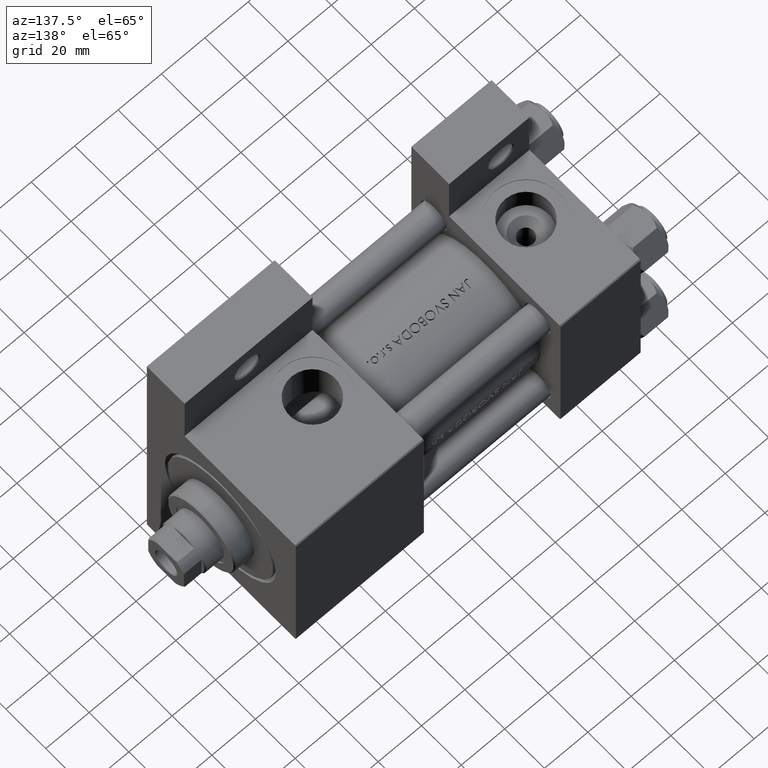
[diagram: clean part render]
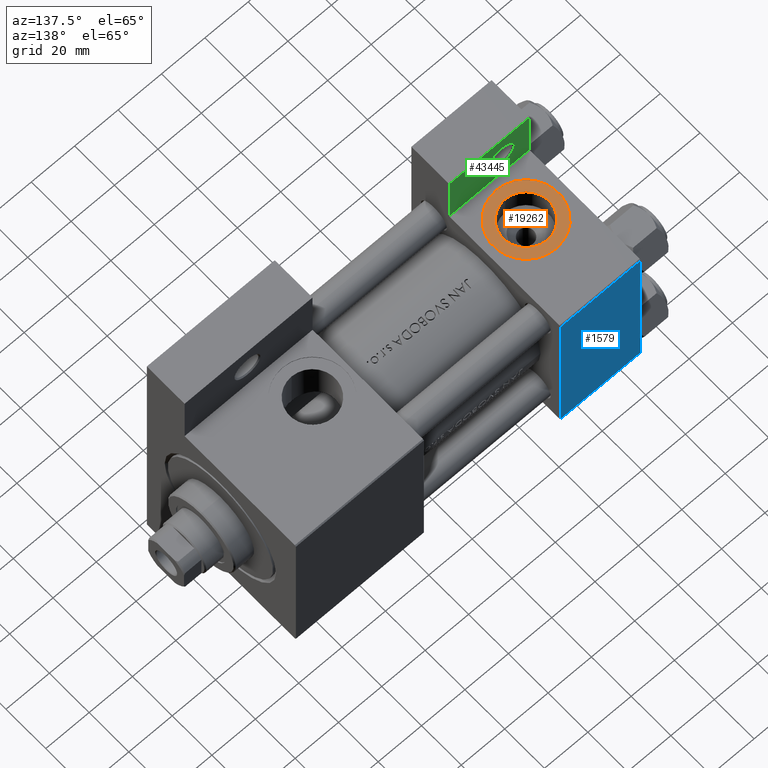
[diagram: same view with three faces highlighted in distinct colors, each labeled with its STEP entity id]
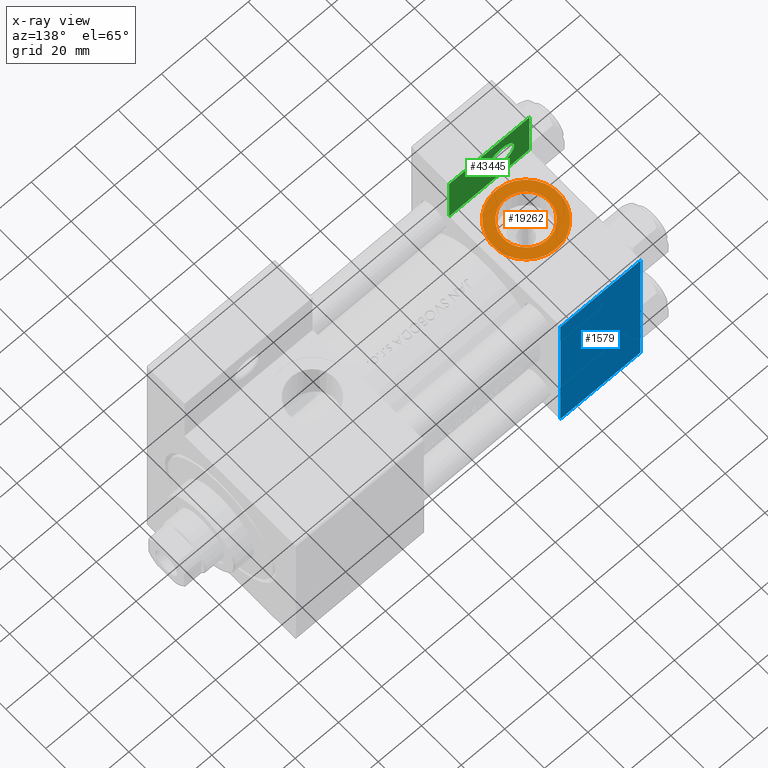
[diagram: x-ray of the same camera — body ghosted, the three highlighted faces saturated]
A machine part, auxiliary view with three faces highlighted in distinct colors.
The next image is the same camera in x-ray (body ghosted, the three faces saturated) — at least one of them is partly hidden behind the body in this view.
Their STEP definitions:

[orange] entity #19262 — the highlighted planar face has unit normal (0, -0, 1).
#494 = EDGE_CURVE ( 'NONE', #2974, #1648, #16125, .T. ) ;
#1229 = DIRECTION ( 'NONE',  ( 0.000000000000000000, 0.000000000000000000, -1.000000000000000000 ) ) ;
#1392 = EDGE_LOOP ( 'NONE', ( #6895, #7362 ) ) ;
#1648 = VERTEX_POINT ( 'NONE', #37598 ) ;
#2750 = PLANE ( 'NONE',  #28692 ) ;
#2974 = VERTEX_POINT ( 'NONE', #20824 ) ;
#3147 = DIRECTION ( 'NONE',  ( 0.000000000000000000, 0.000000000000000000, -1.000000000000000000 ) ) ;
#3643 = DIRECTION ( 'NONE',  ( 0.000000000000000000, -1.000000000000000000, -8.673617379884036705E-17 ) ) ;
#4317 = CARTESIAN_POINT ( 'NONE',  ( 18.50000000000000000, -37.30000000000000426, -3.452099717193846907E-15 ) ) ;
#5110 = DIRECTION ( 'NONE',  ( 0.000000000000000000, 0.000000000000000000, -1.000000000000000000 ) ) ;
#6327 = VERTEX_POINT ( 'NONE', #20836 ) ;
#6895 = ORIENTED_EDGE ( 'NONE', *, *, #494, .F. ) ;
#7362 = ORIENTED_EDGE ( 'NONE', *, *, #44412, .F. ) ;
#8375 = CIRCLE ( 'NONE', #46558, 10.48000000000000043 ) ;
#9779 = AXIS2_PLACEMENT_3D ( 'NONE', #4317, #10804, #18517 ) ;
#9825 = ORIENTED_EDGE ( 'NONE', *, *, #31256, .T. ) ;
#10804 = DIRECTION ( 'NONE',  ( 0.000000000000000000, -1.000000000000000000, -8.673617379884036705E-17 ) ) ;
#11066 = VERTEX_POINT ( 'NONE', #32131 ) ;
#15127 = EDGE_LOOP ( 'NONE', ( #9825, #20919 ) ) ;
#16125 = CIRCLE ( 'NONE', #9779, 10.48000000000000043 ) ;
#17945 = DIRECTION ( 'NONE',  ( 0.000000000000000000, 8.673617379884036705E-17, -1.000000000000000000 ) ) ;
#18517 = DIRECTION ( 'NONE',  ( 0.000000000000000000, 0.000000000000000000, -1.000000000000000000 ) ) ;
#19262 = ADVANCED_FACE ( 'NONE', ( #40376, #25172 ), #2750, .T. ) ;
#20639 = DIRECTION ( 'NONE',  ( 0.000000000000000000, -1.000000000000000000, -8.673617379884036705E-17 ) ) ;
#20824 = CARTESIAN_POINT ( 'NONE',  ( 18.50000000000000000, -37.30000000000000426, -10.48000000000000398 ) ) ;
#20836 = CARTESIAN_POINT ( 'NONE',  ( 18.50000000000000355, -37.30000000000000426, 14.99999999999999822 ) ) ;
#20919 = ORIENTED_EDGE ( 'NONE', *, *, #25835, .T. ) ;
#24971 = CIRCLE ( 'NONE', #35303, 15.00000000000000178 ) ;
#25172 = FACE_OUTER_BOUND ( 'NONE', #15127, .T. ) ;
#25585 = CIRCLE ( 'NONE', #44699, 15.00000000000000178 ) ;
#25835 = EDGE_CURVE ( 'NONE', #6327, #11066, #25585, .T. ) ;
#27289 = DIRECTION ( 'NONE',  ( 0.000000000000000000, -1.000000000000000000, -8.673617379884036705E-17 ) ) ;
#28692 = AXIS2_PLACEMENT_3D ( 'NONE', #40119, #40848, #17945 ) ;
#29549 = CARTESIAN_POINT ( 'NONE',  ( 18.50000000000000000, -37.30000000000000426, -3.452099717193846907E-15 ) ) ;
#31256 = EDGE_CURVE ( 'NONE', #11066, #6327, #24971, .T. ) ;
#32131 = CARTESIAN_POINT ( 'NONE',  ( 18.50000000000000000, -37.30000000000000426, -15.00000000000000533 ) ) ;
#34761 = CARTESIAN_POINT ( 'NONE',  ( 18.50000000000000000, -37.30000000000000426, -3.452099717193846907E-15 ) ) ;
#35303 = AXIS2_PLACEMENT_3D ( 'NONE', #39082, #20639, #1229 ) ;
#37598 = CARTESIAN_POINT ( 'NONE',  ( 18.50000000000000000, -37.30000000000000426, 10.47999999999999687 ) ) ;
#39082 = CARTESIAN_POINT ( 'NONE',  ( 18.50000000000000000, -37.30000000000000426, -3.452099717193846907E-15 ) ) ;
#40119 = CARTESIAN_POINT ( 'NONE',  ( 18.50000000000000000, -37.30000000000000426, -3.452099717193846907E-15 ) ) ;
#40376 = FACE_BOUND ( 'NONE', #1392, .T. ) ;
#40848 = DIRECTION ( 'NONE',  ( 0.000000000000000000, -1.000000000000000000, -8.673617379884036705E-17 ) ) ;
#44412 = EDGE_CURVE ( 'NONE', #1648, #2974, #8375, .T. ) ;
#44699 = AXIS2_PLACEMENT_3D ( 'NONE', #29549, #3643, #3147 ) ;
#46558 = AXIS2_PLACEMENT_3D ( 'NONE', #34761, #27289, #5110 ) ;

[blue] entity #1579 — the highlighted planar face has unit normal (0, -1, -0).
#457 = DIRECTION ( 'NONE',  ( 0.000000000000000000, -1.000000000000000000, -9.251858538542971581E-17 ) ) ;
#849 = CARTESIAN_POINT ( 'NONE',  ( 37.00000000000000000, 37.49999999999999289, 37.50000000000000000 ) ) ;
#1579 = ADVANCED_FACE ( 'NONE', ( #24484 ), #39438, .F. ) ;
#1804 = CARTESIAN_POINT ( 'NONE',  ( 37.00000000000000000, 37.49999999999999289, 37.50000000000000000 ) ) ;
#6877 = VERTEX_POINT ( 'NONE', #30897 ) ;
#7282 = LINE ( 'NONE', #22221, #21924 ) ;
#7498 = EDGE_LOOP ( 'NONE', ( #46935, #8987, #22308, #41996 ) ) ;
#7944 = EDGE_CURVE ( 'NONE', #41668, #43372, #36159, .T. ) ;
#8987 = ORIENTED_EDGE ( 'NONE', *, *, #32853, .T. ) ;
#12480 = LINE ( 'NONE', #20929, #25009 ) ;
#16981 = DIRECTION ( 'NONE',  ( 0.000000000000000000, -1.000000000000000000, -9.251858538542971581E-17 ) ) ;
#18449 = LINE ( 'NONE', #46033, #43177 ) ;
#20748 = DIRECTION ( 'NONE',  ( 0.000000000000000000, 1.000000000000000000, 9.251858538542971581E-17 ) ) ;
#20929 = CARTESIAN_POINT ( 'NONE',  ( 37.00000000000000000, -37.00000000000000711, 37.49999999999999289 ) ) ;
#21924 = VECTOR ( 'NONE', #33658, 1000.000000000000000 ) ;
#22221 = CARTESIAN_POINT ( 'NONE',  ( 0.000000000000000000, 36.99999999999999289, 37.50000000000000000 ) ) ;
#22308 = ORIENTED_EDGE ( 'NONE', *, *, #7944, .F. ) ;
#24484 = FACE_OUTER_BOUND ( 'NONE', #7498, .T. ) ;
#25009 = VECTOR ( 'NONE', #35861, 1000.000000000000000 ) ;
#26427 = CARTESIAN_POINT ( 'NONE',  ( 37.00000000000000000, 36.99999999999999289, 37.50000000000000000 ) ) ;
#28689 = EDGE_CURVE ( 'NONE', #6877, #37568, #18449, .T. ) ;
#30897 = CARTESIAN_POINT ( 'NONE',  ( 0.000000000000000000, 36.99999999999999289, 37.50000000000000000 ) ) ;
#32853 = EDGE_CURVE ( 'NONE', #37568, #43372, #12480, .T. ) ;
#33658 = DIRECTION ( 'NONE',  ( -1.000000000000000000, 0.000000000000000000, 0.000000000000000000 ) ) ;
#35861 = DIRECTION ( 'NONE',  ( 1.000000000000000000, 0.000000000000000000, 0.000000000000000000 ) ) ;
#36159 = LINE ( 'NONE', #1804, #47391 ) ;
#37230 = CARTESIAN_POINT ( 'NONE',  ( 37.00000000000000000, -37.00000000000000711, 37.49999999999999289 ) ) ;
#37568 = VERTEX_POINT ( 'NONE', #41383 ) ;
#39438 = PLANE ( 'NONE',  #43230 ) ;
#39689 = DIRECTION ( 'NONE',  ( 0.000000000000000000, 9.251858538542971581E-17, -1.000000000000000000 ) ) ;
#41383 = CARTESIAN_POINT ( 'NONE',  ( 0.000000000000000000, -37.00000000000000711, 37.49999999999999289 ) ) ;
#41668 = VERTEX_POINT ( 'NONE', #26427 ) ;
#41996 = ORIENTED_EDGE ( 'NONE', *, *, #45434, .T. ) ;
#43177 = VECTOR ( 'NONE', #457, 1000.000000000000000 ) ;
#43230 = AXIS2_PLACEMENT_3D ( 'NONE', #849, #39689, #20748 ) ;
#43372 = VERTEX_POINT ( 'NONE', #37230 ) ;
#45434 = EDGE_CURVE ( 'NONE', #41668, #6877, #7282, .T. ) ;
#46033 = CARTESIAN_POINT ( 'NONE',  ( 0.000000000000000000, 37.49999999999999289, 37.50000000000000000 ) ) ;
#46935 = ORIENTED_EDGE ( 'NONE', *, *, #28689, .T. ) ;
#47391 = VECTOR ( 'NONE', #16981, 1000.000000000000000 ) ;

[green] entity #43445 — the highlighted planar face has unit normal (0, -1, 0).
#128 = DIRECTION ( 'NONE',  ( 0.000000000000000000, 0.000000000000000000, -1.000000000000000000 ) ) ;
#1047 = DIRECTION ( 'NONE',  ( -1.000000000000000000, 0.000000000000000000, 0.000000000000000000 ) ) ;
#4092 = VECTOR ( 'NONE', #26718, 1000.000000000000000 ) ;
#4344 = FACE_BOUND ( 'NONE', #20749, .T. ) ;
#4782 = CARTESIAN_POINT ( 'NONE',  ( 12.99999999999999822, -51.00000000000001421, -18.50000000000000000 ) ) ;
#5146 = CARTESIAN_POINT ( 'NONE',  ( 37.00000000000000000, -63.49999999999998579, -18.50000000000000355 ) ) ;
#7550 = DIRECTION ( 'NONE',  ( 0.000000000000000000, 0.000000000000000000, -1.000000000000000000 ) ) ;
#7624 = DIRECTION ( 'NONE',  ( -1.000000000000000000, 0.000000000000000000, 0.000000000000000000 ) ) ;
#9359 = EDGE_CURVE ( 'NONE', #29761, #21739, #20627, .T. ) ;
#10019 = ORIENTED_EDGE ( 'NONE', *, *, #28924, .T. ) ;
#11524 = LINE ( 'NONE', #22242, #4092 ) ;
#13343 = ORIENTED_EDGE ( 'NONE', *, *, #45756, .T. ) ;
#13748 = AXIS2_PLACEMENT_3D ( 'NONE', #34251, #15075, #7624 ) ;
#15075 = DIRECTION ( 'NONE',  ( 0.000000000000000000, 0.000000000000000000, -1.000000000000000000 ) ) ;
#15314 = CARTESIAN_POINT ( 'NONE',  ( 7.000500000000030809, -51.00000000000001421, -18.50000000000000000 ) ) ;
#17022 = VERTEX_POINT ( 'NONE', #15314 ) ;
#17083 = LINE ( 'NONE', #5146, #22383 ) ;
#18787 = CARTESIAN_POINT ( 'NONE',  ( 37.00000000000000000, -63.50000000000000000, -18.50000000000000355 ) ) ;
#19308 = CARTESIAN_POINT ( 'NONE',  ( 37.00000000000000000, -37.50000000000000000, -18.50000000000000355 ) ) ;
#19537 = PLANE ( 'NONE',  #32178 ) ;
#20361 = LINE ( 'NONE', #35543, #22709 ) ;
#20534 = CARTESIAN_POINT ( 'NONE',  ( 3.977209754999747208E-16, -63.50000000000000000, -18.50000000000000355 ) ) ;
#20627 = LINE ( 'NONE', #43552, #25875 ) ;
#20749 = EDGE_LOOP ( 'NONE', ( #46649, #10019 ) ) ;
#21117 = EDGE_CURVE ( 'NONE', #21743, #17022, #48600, .T. ) ;
#21739 = VERTEX_POINT ( 'NONE', #20534 ) ;
#21743 = VERTEX_POINT ( 'NONE', #25259 ) ;
#22125 = ORIENTED_EDGE ( 'NONE', *, *, #9359, .T. ) ;
#22242 = CARTESIAN_POINT ( 'NONE',  ( -7.145701223179000102E-16, -37.50000000000001421, -18.49999999999999645 ) ) ;
#22383 = VECTOR ( 'NONE', #36268, 1000.000000000000000 ) ;
#22476 = EDGE_LOOP ( 'NONE', ( #30219, #32594, #22125, #13343 ) ) ;
#22709 = VECTOR ( 'NONE', #28288, 1000.000000000000000 ) ;
#24888 = EDGE_CURVE ( 'NONE', #41369, #27990, #17083, .T. ) ;
#25053 = EDGE_CURVE ( 'NONE', #27990, #29761, #11524, .T. ) ;
#25259 = CARTESIAN_POINT ( 'NONE',  ( 18.99949999999996564, -51.00000000000001421, -18.50000000000000000 ) ) ;
#25875 = VECTOR ( 'NONE', #42810, 1000.000000000000000 ) ;
#26718 = DIRECTION ( 'NONE',  ( -1.000000000000000000, 0.000000000000000000, 0.000000000000000000 ) ) ;
#27990 = VERTEX_POINT ( 'NONE', #19308 ) ;
#28288 = DIRECTION ( 'NONE',  ( 1.000000000000000000, 0.000000000000000000, 0.000000000000000000 ) ) ;
#28858 = CIRCLE ( 'NONE', #13748, 5.999499999999966526 ) ;
#28924 = EDGE_CURVE ( 'NONE', #17022, #21743, #28858, .T. ) ;
#29761 = VERTEX_POINT ( 'NONE', #40913 ) ;
#30219 = ORIENTED_EDGE ( 'NONE', *, *, #24888, .T. ) ;
#32178 = AXIS2_PLACEMENT_3D ( 'NONE', #34227, #128, #41976 ) ;
#32594 = ORIENTED_EDGE ( 'NONE', *, *, #25053, .T. ) ;
#34227 = CARTESIAN_POINT ( 'NONE',  ( 0.000000000000000000, 0.000000000000000000, -18.50000000000000000 ) ) ;
#34251 = CARTESIAN_POINT ( 'NONE',  ( 12.99999999999999822, -51.00000000000001421, -18.50000000000000000 ) ) ;
#35543 = CARTESIAN_POINT ( 'NONE',  ( 3.977209754999747208E-16, -63.50000000000000000, -18.50000000000000355 ) ) ;
#36268 = DIRECTION ( 'NONE',  ( -0.000000000000000000, 1.000000000000000000, 0.000000000000000000 ) ) ;
#38718 = FACE_OUTER_BOUND ( 'NONE', #22476, .T. ) ;
#39862 = AXIS2_PLACEMENT_3D ( 'NONE', #4782, #7550, #1047 ) ;
#40913 = CARTESIAN_POINT ( 'NONE',  ( -7.145701223179004046E-16, -37.50000000000000711, -18.50000000000000355 ) ) ;
#41369 = VERTEX_POINT ( 'NONE', #18787 ) ;
#41976 = DIRECTION ( 'NONE',  ( -1.000000000000000000, 0.000000000000000000, -0.000000000000000000 ) ) ;
#42810 = DIRECTION ( 'NONE',  ( 4.278042683914906889E-17, -1.000000000000000000, 0.000000000000000000 ) ) ;
#43445 = ADVANCED_FACE ( 'NONE', ( #4344, #38718 ), #19537, .F. ) ;
#43552 = CARTESIAN_POINT ( 'NONE',  ( 3.977209754999744250E-16, -63.49999999999998579, -18.50000000000000355 ) ) ;
#45756 = EDGE_CURVE ( 'NONE', #21739, #41369, #20361, .T. ) ;
#46649 = ORIENTED_EDGE ( 'NONE', *, *, #21117, .T. ) ;
#48600 = CIRCLE ( 'NONE', #39862, 5.999499999999966526 ) ;